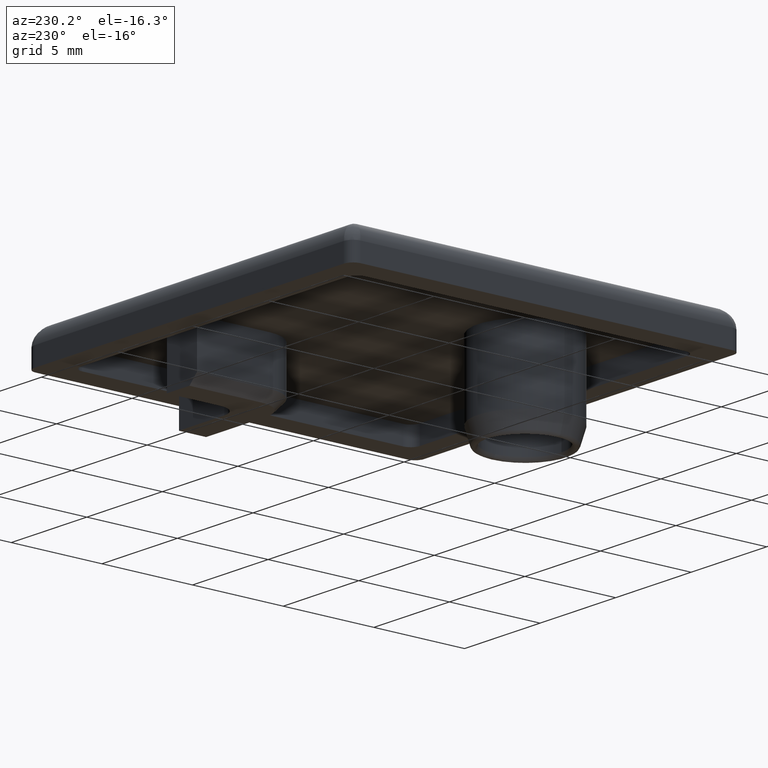
[diagram: clean part render]
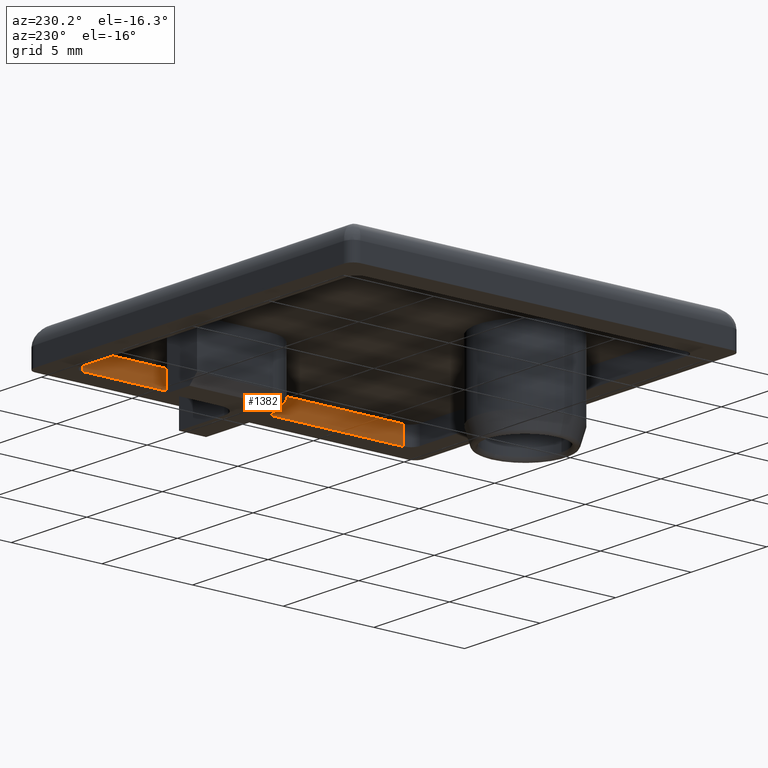
[diagram: same view with one face highlighted and labeled with its STEP entity id]
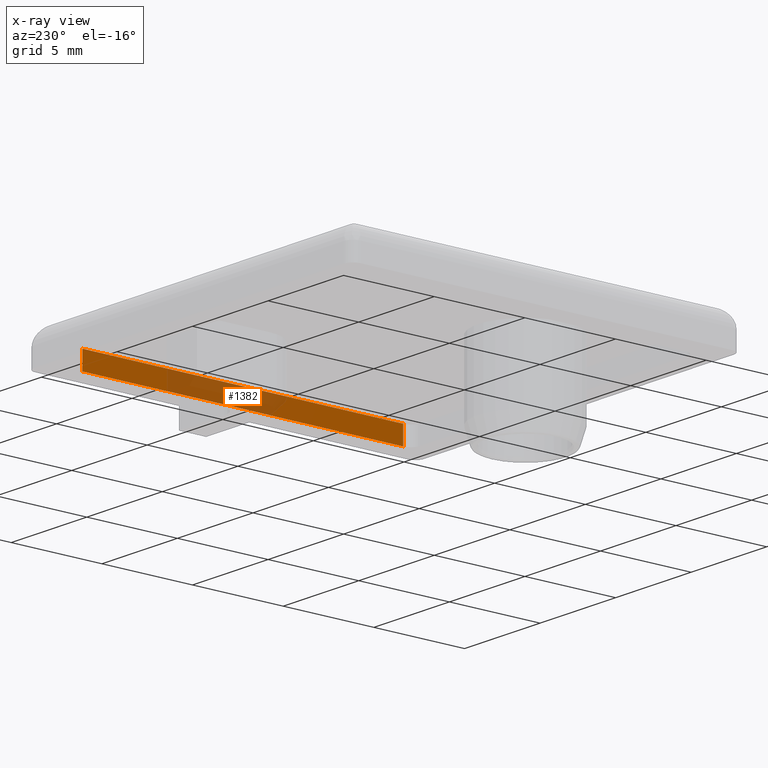
[diagram: x-ray of the same camera — body ghosted, the highlighted face saturated]
A machine part, auxiliary view. The second image highlights one B-rep face of the part: STEP entity #1382.
The next image is the same camera in x-ray: the body ghosted, the highlighted face saturated — about 36% of this face is hidden behind the body in this view.
In plain terms, the highlighted planar face has unit normal (1, 0, 0).
Its self-contained STEP definition (entity closure, byte-faithful):
#388=CARTESIAN_POINT('',(19.953553390593274,1.753553390593272,1.0));
#389=VERTEX_POINT('',#388);
#441=CARTESIAN_POINT('',(19.953553390593274,19.453553390593274,1.0));
#442=VERTEX_POINT('',#441);
#450=CARTESIAN_POINT('',(19.953553390593274,19.453553390593274,1.0));
#451=DIRECTION('',(0.0,-1.0,0.0));
#452=VECTOR('',#451,17.700000000000003);
#453=LINE('',#450,#452);
#454=EDGE_CURVE('',#442,#389,#453,.T.);
#818=CARTESIAN_POINT('',(19.953553390593274,1.753553390593272,0.0));
#819=VERTEX_POINT('',#818);
#827=CARTESIAN_POINT('',(19.953553390593274,19.453553390593274,0.0));
#828=VERTEX_POINT('',#827);
#829=CARTESIAN_POINT('',(19.953553390593274,19.453553390593274,0.0));
#830=DIRECTION('',(0.0,-1.0,0.0));
#831=VECTOR('',#830,17.700000000000003);
#832=LINE('',#829,#831);
#833=EDGE_CURVE('',#828,#819,#832,.T.);
#1260=CARTESIAN_POINT('',(19.953553390593274,1.753553390593272,1.0));
#1261=DIRECTION('',(0.0,0.0,-1.0));
#1262=VECTOR('',#1261,1.0);
#1263=LINE('',#1260,#1262);
#1264=EDGE_CURVE('',#389,#819,#1263,.T.);
#1360=CARTESIAN_POINT('',(19.953553390593274,19.453553390593274,1.0));
#1361=DIRECTION('',(0.0,0.0,-1.0));
#1362=VECTOR('',#1361,1.0);
#1363=LINE('',#1360,#1362);
#1364=EDGE_CURVE('',#442,#828,#1363,.T.);
#1371=CARTESIAN_POINT('',(19.953553390593274,0.868553390593270,1.050000000000000));
#1372=DIRECTION('',(1.0,0.0,0.0));
#1373=DIRECTION('',(0.0,0.0,-1.0));
#1374=AXIS2_PLACEMENT_3D('',#1371,#1372,#1373);
#1375=PLANE('',#1374);
#1376=ORIENTED_EDGE('',*,*,#833,.T.);
#1377=ORIENTED_EDGE('',*,*,#1264,.F.);
#1378=ORIENTED_EDGE('',*,*,#454,.F.);
#1379=ORIENTED_EDGE('',*,*,#1364,.T.);
#1380=EDGE_LOOP('',(#1376,#1377,#1378,#1379));
#1381=FACE_OUTER_BOUND('',#1380,.T.);
#1382=ADVANCED_FACE('',(#1381),#1375,.F.);